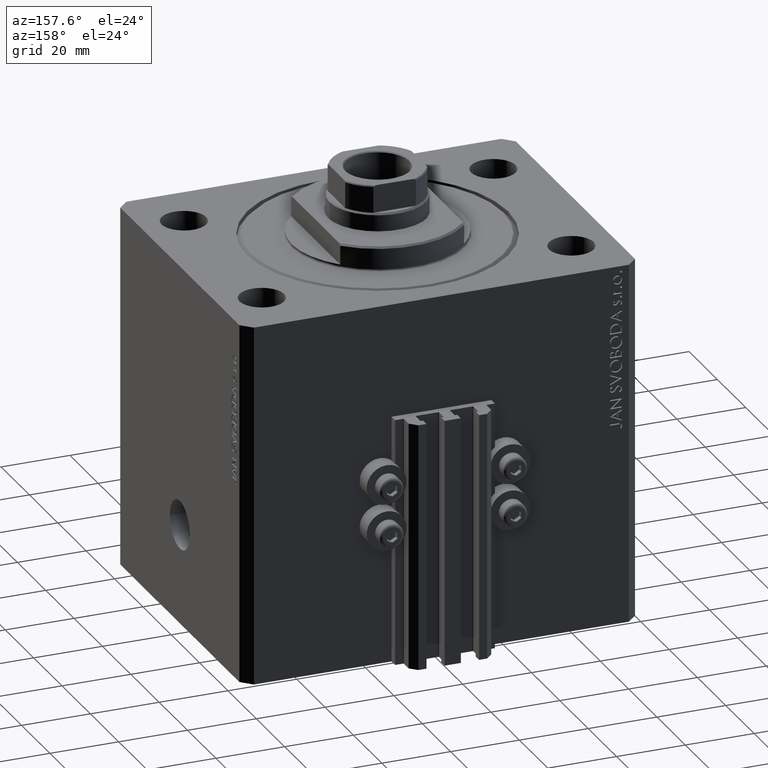
[diagram: clean part render]
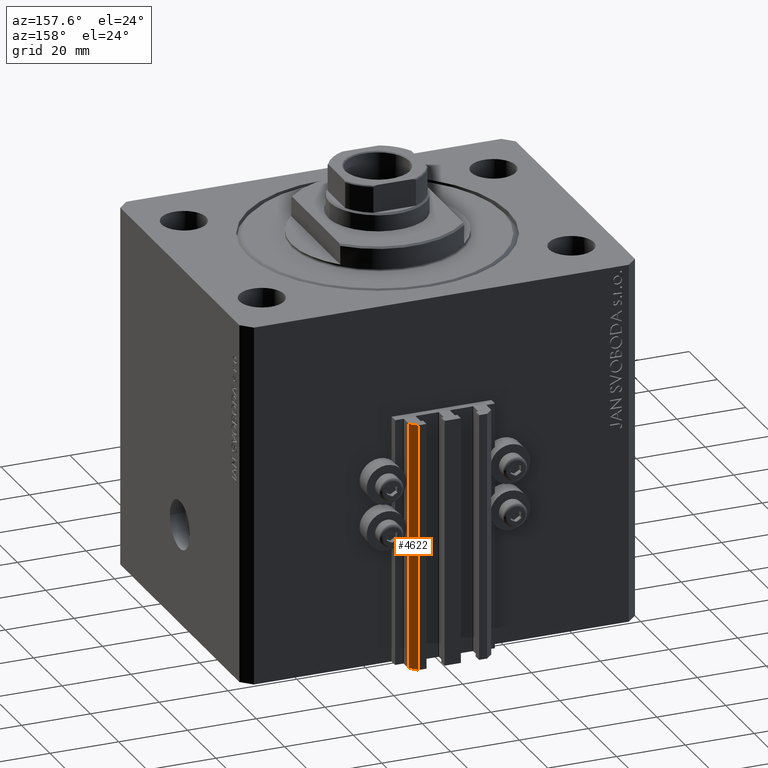
[diagram: same view with one face highlighted and labeled with its STEP entity id]
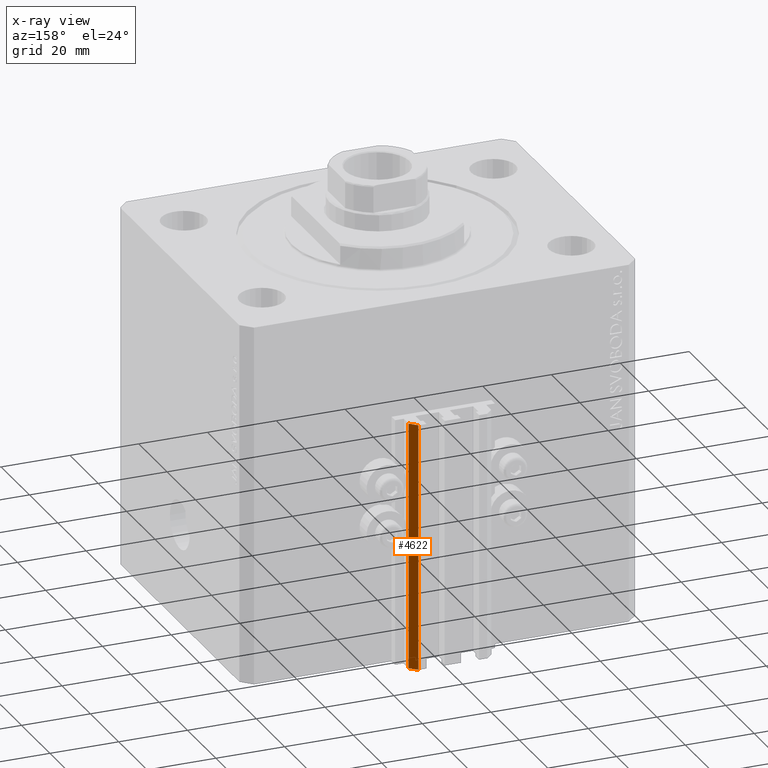
[diagram: x-ray of the same camera — body ghosted, the highlighted face saturated]
A machine part, auxiliary view. The second image highlights one B-rep face of the part: STEP entity #4622.
The next image is the same camera in x-ray: the body ghosted, the highlighted face saturated — about 0% of this face is hidden behind the body in this view.
In plain terms, the highlighted planar face has unit normal (0.7071, 0.7071, 0).
Its self-contained STEP definition (entity closure, byte-faithful):
#415 = CARTESIAN_POINT ( 'NONE',  ( 12.00000000000000000, 51.00000000000000711, -105.0000000000000000 ) ) ;
#1158 = EDGE_CURVE ( 'NONE', #2034, #32784, #15230, .T. ) ;
#2034 = VERTEX_POINT ( 'NONE', #37842 ) ;
#4622 = ADVANCED_FACE ( 'NONE', ( #10494 ), #25311, .T. ) ;
#6374 = VERTEX_POINT ( 'NONE', #11425 ) ;
#6712 = VECTOR ( 'NONE', #36513, 1000.000000000000000 ) ;
#8489 = EDGE_CURVE ( 'NONE', #29972, #32784, #45688, .T. ) ;
#9014 = CARTESIAN_POINT ( 'NONE',  ( 12.00000000000000000, 51.00000000000000711, -105.0000000000000000 ) ) ;
#9324 = DIRECTION ( 'NONE',  ( -0.7071067811865474617, 0.7071067811865474617, 0.000000000000000000 ) ) ;
#10494 = FACE_OUTER_BOUND ( 'NONE', #28169, .T. ) ;
#11425 = CARTESIAN_POINT ( 'NONE',  ( 12.00000000000000000, 51.00000000000000711, -105.0000000000000000 ) ) ;
#11441 = DIRECTION ( 'NONE',  ( 0.7071067811865475727, 0.7071067811865475727, -0.000000000000000000 ) ) ;
#13809 = CARTESIAN_POINT ( 'NONE',  ( 9.999999999999998224, 53.00000000000000711, -33.00000000000000000 ) ) ;
#14380 = VECTOR ( 'NONE', #30060, 1000.000000000000000 ) ;
#14805 = ORIENTED_EDGE ( 'NONE', *, *, #37334, .F. ) ;
#15230 = LINE ( 'NONE', #33626, #6712 ) ;
#19819 = VECTOR ( 'NONE', #9324, 1000.000000000000114 ) ;
#20396 = EDGE_CURVE ( 'NONE', #6374, #2034, #43744, .T. ) ;
#23101 = CARTESIAN_POINT ( 'NONE',  ( 12.00000000000000000, 51.00000000000000711, -33.00000000000000000 ) ) ;
#25311 = PLANE ( 'NONE',  #31910 ) ;
#25547 = DIRECTION ( 'NONE',  ( -0.7071067811865474617, 0.7071067811865474617, 0.000000000000000000 ) ) ;
#28169 = EDGE_LOOP ( 'NONE', ( #40020, #14805, #29712, #44958 ) ) ;
#29712 = ORIENTED_EDGE ( 'NONE', *, *, #20396, .T. ) ;
#29972 = VERTEX_POINT ( 'NONE', #23101 ) ;
#30060 = DIRECTION ( 'NONE',  ( 0.000000000000000000, 0.000000000000000000, 1.000000000000000000 ) ) ;
#31910 = AXIS2_PLACEMENT_3D ( 'NONE', #415, #11441, #25547 ) ;
#32784 = VERTEX_POINT ( 'NONE', #13809 ) ;
#33626 = CARTESIAN_POINT ( 'NONE',  ( 9.999999999999998224, 53.00000000000000711, -105.0000000000000000 ) ) ;
#34630 = VECTOR ( 'NONE', #39926, 1000.000000000000114 ) ;
#36513 = DIRECTION ( 'NONE',  ( 0.000000000000000000, 0.000000000000000000, 1.000000000000000000 ) ) ;
#37034 = CARTESIAN_POINT ( 'NONE',  ( 12.00000000000000000, 51.00000000000000711, -105.0000000000000000 ) ) ;
#37334 = EDGE_CURVE ( 'NONE', #6374, #29972, #41078, .T. ) ;
#37842 = CARTESIAN_POINT ( 'NONE',  ( 9.999999999999998224, 53.00000000000000711, -105.0000000000000000 ) ) ;
#39926 = DIRECTION ( 'NONE',  ( -0.7071067811865474617, 0.7071067811865474617, 0.000000000000000000 ) ) ;
#40020 = ORIENTED_EDGE ( 'NONE', *, *, #8489, .F. ) ;
#41078 = LINE ( 'NONE', #9014, #14380 ) ;
#42102 = CARTESIAN_POINT ( 'NONE',  ( 12.00000000000000000, 51.00000000000000711, -33.00000000000000000 ) ) ;
#43744 = LINE ( 'NONE', #37034, #34630 ) ;
#44958 = ORIENTED_EDGE ( 'NONE', *, *, #1158, .T. ) ;
#45688 = LINE ( 'NONE', #42102, #19819 ) ;